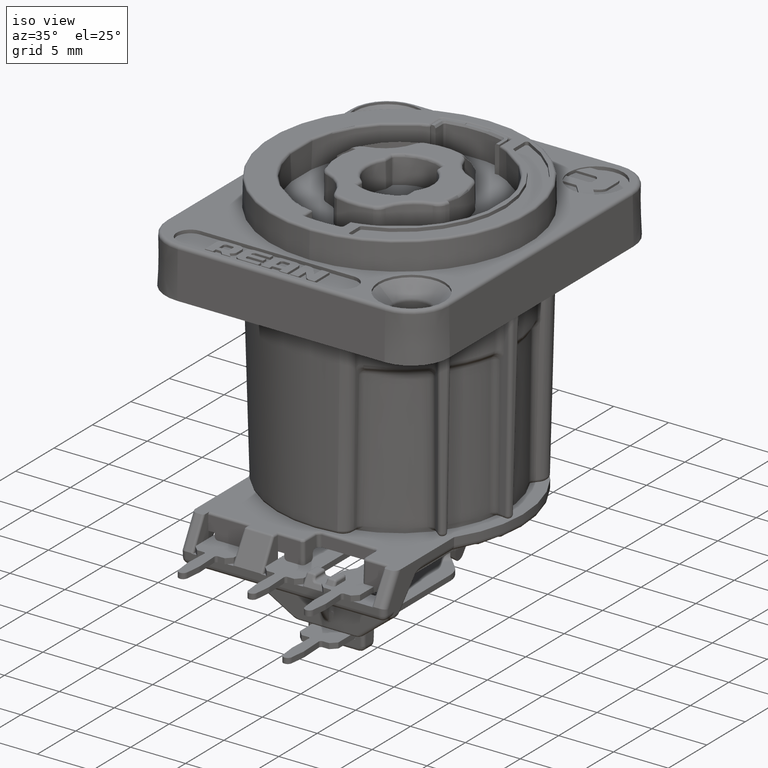
[diagram: clean part render]
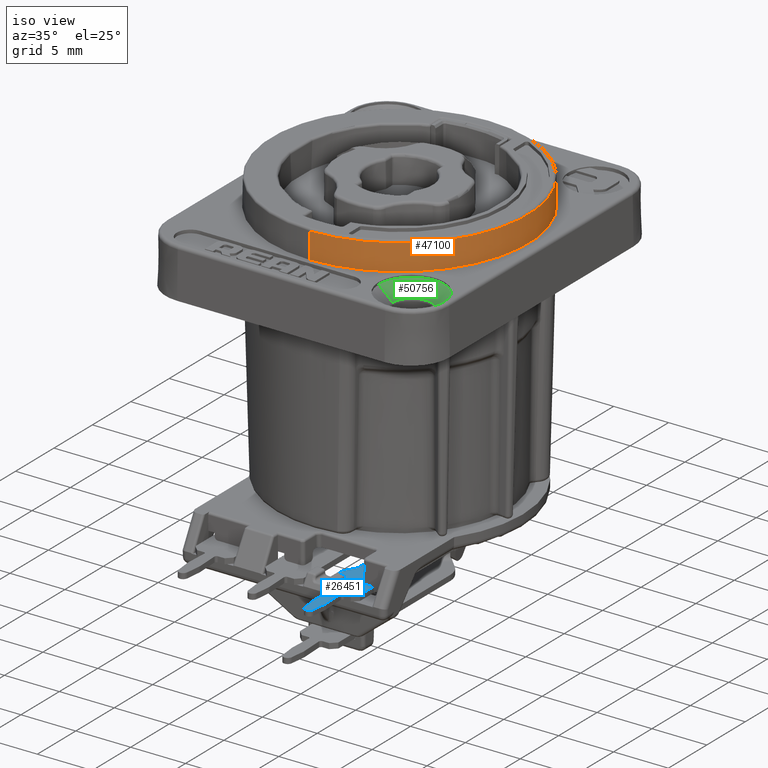
[diagram: same view with three faces highlighted in distinct colors, each labeled with its STEP entity id]
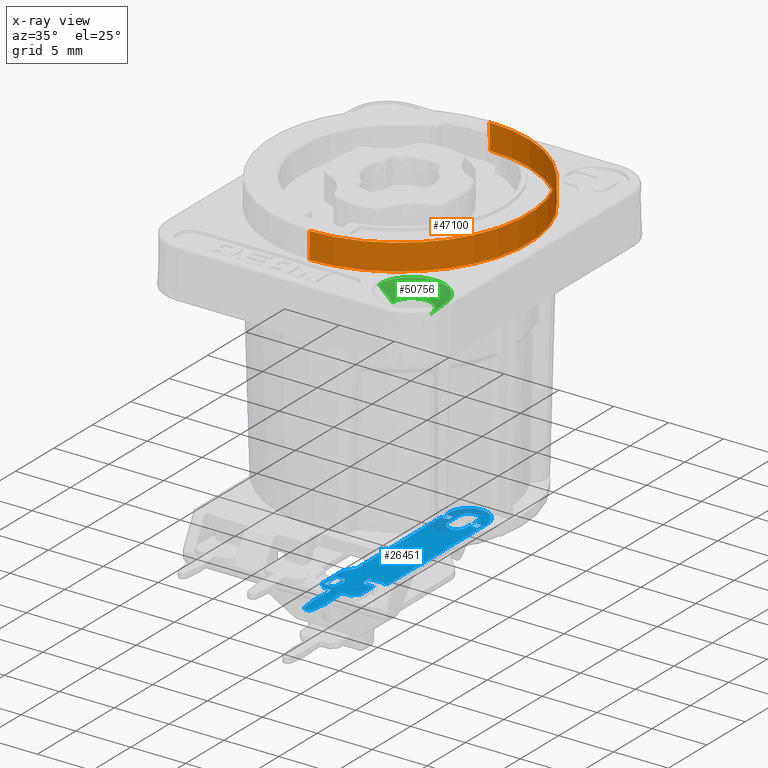
[diagram: x-ray of the same camera — body ghosted, the three highlighted faces saturated]
A machine part, iso view with three faces highlighted in distinct colors.
The next image is the same camera in x-ray (body ghosted, the three faces saturated) — at least one of them is partly hidden behind the body in this view.
Their STEP definitions:

[orange] entity #47100 — the highlighted conical surface has half-angle 1 deg.
#14632=CARTESIAN_POINT('',(0.E0,0.E0,6.853490481287E0));
#14633=DIRECTION('',(0.E0,0.E0,1.E0));
#14634=DIRECTION('',(0.E0,-1.E0,0.E0));
#14635=AXIS2_PLACEMENT_3D('',#14632,#14633,#14634);
#14637=CARTESIAN_POINT('',(0.E0,0.E0,4.5E0));
#14638=DIRECTION('',(0.E0,0.E0,-1.E0));
#14639=DIRECTION('',(0.E0,1.E0,0.E0));
#14640=AXIS2_PLACEMENT_3D('',#14637,#14638,#14639);
#14931=DIRECTION('',(0.E0,1.745240643728E-2,9.998476951564E-1));
#14932=VECTOR('',#14931,2.353848983889E0);
#14933=CARTESIAN_POINT('',(0.E0,-1.175E1,4.5E0));
#14934=LINE('',#14933,#14932);
#14940=DIRECTION('',(0.E0,-1.745240643728E-2,9.998476951564E-1));
#14941=VECTOR('',#14940,2.353848983889E0);
#14942=CARTESIAN_POINT('',(0.E0,1.175E1,4.5E0));
#14943=LINE('',#14942,#14941);
#22442=CARTESIAN_POINT('',(0.E0,1.175E1,4.5E0));
#22443=CARTESIAN_POINT('',(0.E0,-1.175E1,4.5E0));
#22444=VERTEX_POINT('',#22442);
#22445=VERTEX_POINT('',#22443);
#23365=CARTESIAN_POINT('',(0.E0,-1.170891967084E1,6.853490481287E0));
#23366=CARTESIAN_POINT('',(0.E0,1.170891967084E1,6.853490481287E0));
#23367=VERTEX_POINT('',#23365);
#23368=VERTEX_POINT('',#23366);
#47086=CARTESIAN_POINT('',(0.E0,0.E0,5.676745240644E0));
#47087=DIRECTION('',(0.E0,0.E0,-1.E0));
#47088=DIRECTION('',(0.E0,-1.E0,0.E0));
#47089=AXIS2_PLACEMENT_3D('',#47086,#47087,#47088);
#47090=CONICAL_SURFACE('',#47089,1.172945983542E1,1.E0);
#47092=ORIENTED_EDGE('',*,*,#47091,.T.);
#47094=ORIENTED_EDGE('',*,*,#47093,.F.);
#47095=ORIENTED_EDGE('',*,*,#47079,.T.);
#47097=ORIENTED_EDGE('',*,*,#47096,.T.);
#47098=EDGE_LOOP('',(#47092,#47094,#47095,#47097));
#47099=FACE_OUTER_BOUND('',#47098,.F.);
#47100=ADVANCED_FACE('',(#47099),#47090,.T.);
#14636=CIRCLE('',#14635,1.170891967084E1);
#14641=CIRCLE('',#14640,1.175E1);
#47079=EDGE_CURVE('',#22444,#22445,#14641,.T.);
#47091=EDGE_CURVE('',#23367,#23368,#14636,.T.);
#47093=EDGE_CURVE('',#22444,#23368,#14943,.T.);
#47096=EDGE_CURVE('',#22445,#23367,#14934,.T.);

[blue] entity #26451 — the highlighted planar face has unit normal (0, 0, 1).
#1=DIRECTION('',(8.393628278716E-7,9.999999999996E-1,0.E0));
#2=VECTOR('',#1,1.269333800994E0);
#3=CARTESIAN_POINT('',(3.615745937878E0,-1.483812113358E1,-2.002E1));
#4=LINE('',#3,#2);
#23=DIRECTION('',(0.E0,1.E0,0.E0));
#24=VECTOR('',#23,1.746410161514E0);
#25=CARTESIAN_POINT('',(6.9E0,-1.5E1,-2.002E1));
#26=LINE('',#25,#24);
#27=DIRECTION('',(7.071067811865E-1,7.071067811865E-1,0.E0));
#28=VECTOR('',#27,7.071067811865E-1);
#29=CARTESIAN_POINT('',(6.4E0,-1.55E1,-2.002E1));
#30=LINE('',#29,#28);
#31=DIRECTION('',(1.E0,0.E0,0.E0));
#32=VECTOR('',#31,5.906023557859E-1);
#33=CARTESIAN_POINT('',(5.809397644214E0,-1.55E1,-2.002E1));
#34=LINE('',#33,#32);
#35=DIRECTION('',(-4.588543738827E-2,9.989467086065E-1,0.E0));
#36=VECTOR('',#35,1.946988221071E0);
#37=CARTESIAN_POINT('',(5.698946708606E0,-1.765411456261E1,-2.002E1));
#38=LINE('',#37,#36);
#39=CARTESIAN_POINT('',(4.7E0,-1.77E1,-2.002E1));
#40=DIRECTION('',(0.E0,0.E0,1.E0));
#41=DIRECTION('',(9.940351544479E-1,-1.090601289274E-1,0.E0));
#42=AXIS2_PLACEMENT_3D('',#39,#40,#41);
#44=DIRECTION('',(1.090601289274E-1,9.940351544479E-1,0.E0));
#45=VECTOR('',#44,1.342572158210E0);
#46=CARTESIAN_POINT('',(5.547614061779E0,-1.914362405157E1,-2.002E1));
#47=LINE('',#46,#45);
#48=CARTESIAN_POINT('',(5.15E0,-1.91E1,-2.002E1));
#49=DIRECTION('',(0.E0,0.E0,1.E0));
#50=DIRECTION('',(-9.940351544479E-1,-1.090601289274E-1,0.E0));
#51=AXIS2_PLACEMENT_3D('',#48,#49,#50);
#53=DIRECTION('',(1.090601289274E-1,-9.940351544479E-1,0.E0));
#54=VECTOR('',#53,1.342572158210E0);
#55=CARTESIAN_POINT('',(4.605964845552E0,-1.780906012893E1,-2.002E1));
#56=LINE('',#55,#54);
#57=CARTESIAN_POINT('',(5.6E0,-1.77E1,-2.002E1));
#58=DIRECTION('',(0.E0,0.E0,1.E0));
#59=DIRECTION('',(-9.989467086065E-1,4.588543738827E-2,0.E0));
#60=AXIS2_PLACEMENT_3D('',#57,#58,#59);
#62=DIRECTION('',(-4.588543738827E-2,-9.989467086065E-1,0.E0));
#63=VECTOR('',#62,1.946988221071E0);
#64=CARTESIAN_POINT('',(4.690391697507E0,-1.570917708748E1,-2.002E1));
#65=LINE('',#64,#63);
#66=DIRECTION('',(1.E0,0.E0,0.E0));
#67=VECTOR('',#66,5.906023557859E-1);
#68=CARTESIAN_POINT('',(3.9E0,-1.55E1,-2.002E1));
#69=LINE('',#68,#67);
#70=DIRECTION('',(7.071067811865E-1,-7.071067811865E-1,0.E0));
#71=VECTOR('',#70,7.071067811865E-1);
#72=CARTESIAN_POINT('',(3.4E0,-1.5E1,-2.002E1));
#73=LINE('',#72,#71);
#74=DIRECTION('',(0.E0,-1.E0,0.E0));
#75=VECTOR('',#74,2.684232335023E0);
#76=CARTESIAN_POINT('',(3.4E0,-1.231576766498E1,-2.002E1));
#77=LINE('',#76,#75);
#78=CARTESIAN_POINT('',(3.6E0,-1.231576766498E1,-2.002E1));
#79=DIRECTION('',(0.E0,0.E0,1.E0));
#80=DIRECTION('',(-8.660254037844E-1,5.E-1,0.E0));
#81=AXIS2_PLACEMENT_3D('',#78,#79,#80);
#83=DIRECTION('',(-5.E-1,-8.660254037844E-1,0.E0));
#84=VECTOR('',#83,1.092820323028E0);
#85=CARTESIAN_POINT('',(3.973205080757E0,-1.126935750346E1,-2.002E1));
#86=LINE('',#85,#84);
#87=DIRECTION('',(0.E0,-1.E0,0.E0));
#88=VECTOR('',#87,1.087935258889E1);
#89=CARTESIAN_POINT('',(4.E0,-2.900049145777E-1,-2.002E1));
#90=LINE('',#89,#88);
#91=DIRECTION('',(0.E0,-1.E0,0.E0));
#92=VECTOR('',#91,4.599950854223E-1);
#93=CARTESIAN_POINT('',(4.E0,7.5E-1,-2.002E1));
#94=LINE('',#93,#92);
#95=CARTESIAN_POINT('',(5.75E0,7.5E-1,-2.002E1));
#96=DIRECTION('',(0.E0,0.E0,1.E0));
#97=DIRECTION('',(1.E0,0.E0,0.E0));
#98=AXIS2_PLACEMENT_3D('',#95,#96,#97);
#100=DIRECTION('',(0.E0,1.E0,0.E0));
#101=VECTOR('',#100,1.285717967697E1);
#102=CARTESIAN_POINT('',(7.5E0,-1.210717967697E1,-2.002E1));
#103=LINE('',#102,#101);
#104=CARTESIAN_POINT('',(7.3E0,-1.210717967697E1,-2.002E1));
#105=DIRECTION('',(0.E0,0.E0,1.E0));
#106=DIRECTION('',(8.660254037844E-1,-5.E-1,0.E0));
#107=AXIS2_PLACEMENT_3D('',#104,#105,#106);
#109=DIRECTION('',(5.E-1,8.660254037844E-1,0.E0));
#110=VECTOR('',#109,3.664003323583E-1);
#111=CARTESIAN_POINT('',(7.290004914578E0,-1.252449167275E1,-2.002E1));
#112=LINE('',#111,#110);
#113=DIRECTION('',(0.E0,-1.E0,0.E0));
#114=VECTOR('',#113,4.599950854223E-1);
#115=CARTESIAN_POINT('',(6.55E0,7.5E-1,-2.002E1));
#116=LINE('',#115,#114);
#117=CARTESIAN_POINT('',(5.75E0,7.5E-1,-2.002E1));
#118=DIRECTION('',(0.E0,0.E0,-1.E0));
#119=DIRECTION('',(-1.E0,0.E0,0.E0));
#120=AXIS2_PLACEMENT_3D('',#117,#118,#119);
#122=DIRECTION('',(0.E0,1.E0,0.E0));
#123=VECTOR('',#122,1.5E0);
#124=CARTESIAN_POINT('',(4.95E0,-7.5E-1,-2.002E1));
#125=LINE('',#124,#123);
#126=CARTESIAN_POINT('',(5.75E0,-7.5E-1,-2.002E1));
#127=DIRECTION('',(0.E0,0.E0,-1.E0));
#128=DIRECTION('',(1.E0,0.E0,0.E0));
#129=AXIS2_PLACEMENT_3D('',#126,#127,#128);
#131=DIRECTION('',(0.E0,-1.E0,0.E0));
#132=VECTOR('',#131,4.599950854223E-1);
#133=CARTESIAN_POINT('',(6.55E0,-2.900049145777E-1,-2.002E1));
#134=LINE('',#133,#132);
#259=DIRECTION('',(1.E0,0.E0,0.E0));
#260=VECTOR('',#259,7.569410744712E-1);
#261=CARTESIAN_POINT('',(6.143822324146E0,-1.323613198440E1,-2.002E1));
#262=LINE('',#261,#260);
#1499=CARTESIAN_POINT('',(4.540399714289E0,-1.475353247458E1,-2.002E1));
#1500=CARTESIAN_POINT('',(4.540399714289E0,-1.478913329429E1,-2.002E1));
#1501=CARTESIAN_POINT('',(4.527588556641E0,-1.484752377605E1,-2.002E1));
#1502=CARTESIAN_POINT('',(4.488485096933E0,-1.491522277546E1,-2.002E1));
#1503=CARTESIAN_POINT('',(4.430554972464E0,-1.496409511012E1,-2.002E1));
#1504=CARTESIAN_POINT('',(4.377715574880E0,-1.498245735195E1,-2.002E1));
#1505=CARTESIAN_POINT('',(4.342114755174E0,-1.498245735195E1,-2.002E1));
#4380=DIRECTION('',(-1.E0,0.E0,0.E0));
#4381=VECTOR('',#4380,7.400049145777E-1);
#4382=CARTESIAN_POINT('',(7.290004914578E0,-2.900049145777E-1,-2.002E1));
#4383=LINE('',#4382,#4381);
#4430=DIRECTION('',(1.E0,0.E0,0.E0));
#4431=VECTOR('',#4430,7.400049145777E-1);
#4432=CARTESIAN_POINT('',(6.55E0,2.900049145777E-1,-2.002E1));
#4433=LINE('',#4432,#4431);
#4449=DIRECTION('',(0.E0,-1.E0,0.E0));
#4450=VECTOR('',#4449,5.800098291555E-1);
#4451=CARTESIAN_POINT('',(7.290004914578E0,2.900049145777E-1,-2.002E1));
#4452=LINE('',#4451,#4450);
#4596=DIRECTION('',(1.E0,0.E0,0.E0));
#4597=VECTOR('',#4596,6.900049145777E-1);
#4598=CARTESIAN_POINT('',(4.E0,2.900049145777E-1,-2.002E1));
#4599=LINE('',#4598,#4597);
#4615=DIRECTION('',(0.E0,-1.E0,0.E0));
#4616=VECTOR('',#4615,5.800098291555E-1);
#4617=CARTESIAN_POINT('',(4.690004914578E0,2.900049145777E-1,-2.002E1));
#4618=LINE('',#4617,#4616);
#4634=DIRECTION('',(-1.E0,0.E0,0.E0));
#4635=VECTOR('',#4634,6.900049145777E-1);
#4636=CARTESIAN_POINT('',(4.690004914578E0,-2.900049145777E-1,-2.002E1));
#4637=LINE('',#4636,#4635);
#5528=DIRECTION('',(0.E0,1.E0,0.E0));
#5529=VECTOR('',#5528,1.179627023945E0);
#5530=CARTESIAN_POINT('',(4.540399714289E0,-1.475353247458E1,-2.002E1));
#5531=LINE('',#5530,#5529);
#5552=CARTESIAN_POINT('',(4.540399714289E0,-1.357390545064E1,-2.002E1));
#5553=CARTESIAN_POINT('',(4.540399714289E0,-1.354057972984E1,-2.002E1));
#5554=CARTESIAN_POINT('',(4.525948311410E0,-1.348837969112E1,-2.002E1));
#5555=CARTESIAN_POINT('',(4.484809866125E0,-1.342954097401E1,-2.002E1));
#5556=CARTESIAN_POINT('',(4.426000295287E0,-1.338837338245E1,-2.002E1));
#5557=CARTESIAN_POINT('',(4.373816804075E0,-1.337390543207E1,-2.002E1));
#5558=CARTESIAN_POINT('',(4.340491083277E0,-1.337390543207E1,-2.002E1));
#5622=DIRECTION('',(-9.999999999995E-1,-1.003499986808E-6,0.E0));
#5623=VECTOR('',#5622,4.891180619046E-1);
#5624=CARTESIAN_POINT('',(4.340491083277E0,-1.337390543207E1,-2.002E1));
#5625=LINE('',#5624,#5623);
#5770=DIRECTION('',(9.999999999745E-1,7.140768877864E-6,0.E0));
#5771=VECTOR('',#5770,5.464229184748E-1);
#5772=CARTESIAN_POINT('',(3.795691836713E0,-1.498246125383E1,-2.002E1));
#5773=LINE('',#5772,#5771);
#6833=CARTESIAN_POINT('',(5.843868015599E0,-1.293617767585E1,-2.002E1));
#6834=CARTESIAN_POINT('',(5.843868015599E0,-1.298617006061E1,-2.002E1));
#6835=CARTESIAN_POINT('',(5.865563602668E0,-1.306445924306E1,-2.002E1));
#6836=CARTESIAN_POINT('',(5.927299495989E0,-1.315270050401E1,-2.002E1));
#6837=CARTESIAN_POINT('',(6.015540756941E0,-1.321443639733E1,-2.002E1));
#6838=CARTESIAN_POINT('',(6.093829939388E0,-1.323613198440E1,-2.002E1));
#6839=CARTESIAN_POINT('',(6.143822324146E0,-1.323613198440E1,-2.002E1));
#6841=DIRECTION('',(0.E0,1.E0,0.E0));
#6842=VECTOR('',#6841,6.261825904322E-1);
#6843=CARTESIAN_POINT('',(5.843868015599E0,-1.293617767585E1,-2.002E1));
#6844=LINE('',#6843,#6842);
#6865=DIRECTION('',(1.E0,0.E0,0.E0));
#6866=VECTOR('',#6865,1.446136898979E0);
#6867=CARTESIAN_POINT('',(5.843868015599E0,-1.230999508542E1,-2.002E1));
#6868=LINE('',#6867,#6866);
#6884=DIRECTION('',(0.E0,-1.E0,0.E0));
#6885=VECTOR('',#6884,2.144965873275E-1);
#6886=CARTESIAN_POINT('',(7.290004914578E0,-1.230999508542E1,-2.002E1));
#6887=LINE('',#6886,#6885);
#7654=CARTESIAN_POINT('',(3.795691836713E0,-1.498246125383E1,-2.002E1));
#7655=CARTESIAN_POINT('',(3.779127521623E0,-1.498245955591E1,-2.002E1));
#7656=CARTESIAN_POINT('',(3.747744565703E0,-1.497936654174E1,-2.002E1));
#7657=CARTESIAN_POINT('',(3.704486393362E0,-1.496609990457E1,-2.002E1));
#7658=CARTESIAN_POINT('',(3.670266265100E0,-1.494681906104E1,-2.002E1));
#7659=CARTESIAN_POINT('',(3.644765536863E0,-1.492369925158E1,-2.002E1));
#7660=CARTESIAN_POINT('',(3.627363995636E0,-1.489739922909E1,-2.002E1));
#7661=CARTESIAN_POINT('',(3.617771378985E0,-1.486934541820E1,-2.002E1));
#7662=CARTESIAN_POINT('',(3.615745209341E0,-1.484879057952E1,-2.002E1));
#7663=CARTESIAN_POINT('',(3.615745937878E0,-1.483812113358E1,-2.002E1));
#7691=CARTESIAN_POINT('',(3.615747003309E0,-1.356878733259E1,-2.002E1));
#7692=CARTESIAN_POINT('',(3.615746871007E0,-1.355594483759E1,-2.002E1));
#7693=CARTESIAN_POINT('',(3.619469416277E0,-1.353052355155E1,-2.002E1));
#7694=CARTESIAN_POINT('',(3.636012800277E0,-1.349284456921E1,-2.002E1));
#7695=CARTESIAN_POINT('',(3.662747075912E0,-1.345672482359E1,-2.002E1));
#7696=CARTESIAN_POINT('',(3.699547481225E0,-1.342335790470E1,-2.002E1));
#7697=CARTESIAN_POINT('',(3.745703098578E0,-1.339565331518E1,-2.002E1));
#7698=CARTESIAN_POINT('',(3.798844945003E0,-1.337769377827E1,-2.002E1));
#7699=CARTESIAN_POINT('',(3.833666396150E0,-1.337390600137E1,-2.002E1));
#7700=CARTESIAN_POINT('',(3.851373021373E0,-1.337390592290E1,-2.002E1));
#7786=CARTESIAN_POINT('',(4.490602355786E0,-1.57E1,-2.002E1));
#7787=DIRECTION('',(0.E0,0.E0,-1.E0));
#7788=DIRECTION('',(0.E0,1.E0,0.E0));
#7789=AXIS2_PLACEMENT_3D('',#7786,#7787,#7788);
#7828=CARTESIAN_POINT('',(5.809397644214E0,-1.57E1,-2.002E1));
#7829=DIRECTION('',(0.E0,0.E0,-1.E0));
#7830=DIRECTION('',(-9.989467086065E-1,-4.588543738826E-2,0.E0));
#7831=AXIS2_PLACEMENT_3D('',#7828,#7829,#7830);
#7854=CARTESIAN_POINT('',(7.1E0,-1.325358983849E1,-2.002E1));
#7855=DIRECTION('',(0.E0,0.E0,-1.E0));
#7856=DIRECTION('',(-1.E0,0.E0,0.E0));
#7857=AXIS2_PLACEMENT_3D('',#7854,#7855,#7856);
#7888=CARTESIAN_POINT('',(3.8E0,-1.116935750346E1,-2.002E1));
#7889=DIRECTION('',(0.E0,0.E0,-1.E0));
#7890=DIRECTION('',(1.E0,0.E0,0.E0));
#7891=AXIS2_PLACEMENT_3D('',#7888,#7889,#7890);
#25698=CARTESIAN_POINT('',(7.5E0,7.5E-1,-2.002E1));
#25699=CARTESIAN_POINT('',(4.E0,7.5E-1,-2.002E1));
#25700=VERTEX_POINT('',#25698);
#25701=VERTEX_POINT('',#25699);
#25702=CARTESIAN_POINT('',(6.55E0,-7.5E-1,-2.002E1));
#25703=CARTESIAN_POINT('',(4.95E0,-7.5E-1,-2.002E1));
#25704=VERTEX_POINT('',#25702);
#25705=VERTEX_POINT('',#25703);
#25706=CARTESIAN_POINT('',(4.95E0,7.5E-1,-2.002E1));
#25707=CARTESIAN_POINT('',(6.55E0,7.5E-1,-2.002E1));
#25708=VERTEX_POINT('',#25706);
#25709=VERTEX_POINT('',#25707);
#25714=CARTESIAN_POINT('',(4.752385938221E0,-1.914362405157E1,-2.002E1));
#25715=CARTESIAN_POINT('',(5.547614061779E0,-1.914362405157E1,-2.002E1));
#25716=VERTEX_POINT('',#25714);
#25717=VERTEX_POINT('',#25715);
#25726=CARTESIAN_POINT('',(4.601053291394E0,-1.765411456261E1,-2.002E1));
#25727=CARTESIAN_POINT('',(4.605964845552E0,-1.780906012893E1,-2.002E1));
#25728=VERTEX_POINT('',#25726);
#25729=VERTEX_POINT('',#25727);
#25730=CARTESIAN_POINT('',(5.694035154448E0,-1.780906012893E1,-2.002E1));
#25731=VERTEX_POINT('',#25730);
#25732=CARTESIAN_POINT('',(5.698946708606E0,-1.765411456261E1,-2.002E1));
#25733=VERTEX_POINT('',#25732);
#25734=CARTESIAN_POINT('',(3.4E0,-1.5E1,-2.002E1));
#25735=CARTESIAN_POINT('',(3.9E0,-1.55E1,-2.002E1));
#25736=VERTEX_POINT('',#25734);
#25737=VERTEX_POINT('',#25735);
#25744=CARTESIAN_POINT('',(6.4E0,-1.55E1,-2.002E1));
#25745=VERTEX_POINT('',#25744);
#25746=CARTESIAN_POINT('',(6.9E0,-1.5E1,-2.002E1));
#25747=VERTEX_POINT('',#25746);
#25791=CARTESIAN_POINT('',(3.973205080757E0,-1.126935750346E1,-2.002E1));
#25793=VERTEX_POINT('',#25791);
#25795=CARTESIAN_POINT('',(4.E0,-1.116935750346E1,-2.002E1));
#25797=VERTEX_POINT('',#25795);
#25799=CARTESIAN_POINT('',(6.9E0,-1.325358983849E1,-2.002E1));
#25801=VERTEX_POINT('',#25799);
#25808=CARTESIAN_POINT('',(3.426794919243E0,-1.221576766498E1,-2.002E1));
#25809=VERTEX_POINT('',#25808);
#25810=CARTESIAN_POINT('',(3.4E0,-1.231576766498E1,-2.002E1));
#25811=VERTEX_POINT('',#25810);
#25816=CARTESIAN_POINT('',(7.473205080757E0,-1.220717967697E1,-2.002E1));
#25817=VERTEX_POINT('',#25816);
#25818=CARTESIAN_POINT('',(7.5E0,-1.210717967697E1,-2.002E1));
#25819=VERTEX_POINT('',#25818);
#25821=CARTESIAN_POINT('',(5.809397644214E0,-1.55E1,-2.002E1));
#25823=VERTEX_POINT('',#25821);
#25825=CARTESIAN_POINT('',(5.609608302493E0,-1.570917708748E1,-2.002E1));
#25827=VERTEX_POINT('',#25825);
#25829=CARTESIAN_POINT('',(4.690391697507E0,-1.570917708748E1,-2.002E1));
#25831=VERTEX_POINT('',#25829);
#25833=CARTESIAN_POINT('',(4.490602355786E0,-1.55E1,-2.002E1));
#25835=VERTEX_POINT('',#25833);
#25840=CARTESIAN_POINT('',(4.E0,2.900049145777E-1,-2.002E1));
#25841=CARTESIAN_POINT('',(4.E0,-2.900049145777E-1,-2.002E1));
#25842=VERTEX_POINT('',#25840);
#25843=VERTEX_POINT('',#25841);
#25844=CARTESIAN_POINT('',(6.55E0,2.900049145777E-1,-2.002E1));
#25845=CARTESIAN_POINT('',(6.55E0,-2.900049145777E-1,-2.002E1));
#25846=VERTEX_POINT('',#25844);
#25847=VERTEX_POINT('',#25845);
#25848=CARTESIAN_POINT('',(7.290004914578E0,-1.252449167275E1,-2.002E1));
#25850=VERTEX_POINT('',#25848);
#25852=CARTESIAN_POINT('',(6.900763398617E0,-1.323613198440E1,-2.002E1));
#25853=VERTEX_POINT('',#25852);
#25854=CARTESIAN_POINT('',(6.143822324146E0,-1.323613198440E1,-2.002E1));
#25855=VERTEX_POINT('',#25854);
#25856=CARTESIAN_POINT('',(5.843868015599E0,-1.293617767585E1,-2.002E1));
#25857=CARTESIAN_POINT('',(5.843868015599E0,-1.230999508542E1,-2.002E1));
#25858=VERTEX_POINT('',#25856);
#25859=VERTEX_POINT('',#25857);
#25864=CARTESIAN_POINT('',(3.795691836713E0,-1.498246125383E1,-2.002E1));
#25865=CARTESIAN_POINT('',(4.342114755174E0,-1.498245735195E1,-2.002E1));
#25866=VERTEX_POINT('',#25864);
#25867=VERTEX_POINT('',#25865);
#25874=CARTESIAN_POINT('',(4.540399714289E0,-1.475353247458E1,-2.002E1));
#25875=CARTESIAN_POINT('',(4.540399714289E0,-1.357390545064E1,-2.002E1));
#25876=VERTEX_POINT('',#25874);
#25877=VERTEX_POINT('',#25875);
#25882=CARTESIAN_POINT('',(4.340491083277E0,-1.337390543207E1,-2.002E1));
#25883=CARTESIAN_POINT('',(3.851373021373E0,-1.337390592290E1,-2.002E1));
#25884=VERTEX_POINT('',#25882);
#25885=VERTEX_POINT('',#25883);
#25888=CARTESIAN_POINT('',(7.290004914578E0,-1.230999508542E1,-2.002E1));
#25889=VERTEX_POINT('',#25888);
#25890=CARTESIAN_POINT('',(4.690004914578E0,2.900049145777E-1,-2.002E1));
#25891=VERTEX_POINT('',#25890);
#25892=CARTESIAN_POINT('',(4.690004914578E0,-2.900049145777E-1,-2.002E1));
#25893=VERTEX_POINT('',#25892);
#25894=CARTESIAN_POINT('',(7.290004914578E0,2.900049145777E-1,-2.002E1));
#25895=VERTEX_POINT('',#25894);
#25896=CARTESIAN_POINT('',(7.290004914578E0,-2.900049145777E-1,-2.002E1));
#25897=VERTEX_POINT('',#25896);
#25898=CARTESIAN_POINT('',(3.615745937878E0,-1.483812113358E1,-2.002E1));
#25899=CARTESIAN_POINT('',(3.615747003309E0,-1.356878733259E1,-2.002E1));
#25900=VERTEX_POINT('',#25898);
#25901=VERTEX_POINT('',#25899);
#26343=CARTESIAN_POINT('',(5.75E0,7.5E-1,-2.002E1));
#26344=DIRECTION('',(0.E0,0.E0,1.E0));
#26345=DIRECTION('',(1.E0,0.E0,0.E0));
#26346=AXIS2_PLACEMENT_3D('',#26343,#26344,#26345);
#26347=PLANE('',#26346);
#26349=ORIENTED_EDGE('',*,*,#26348,.T.);
#26351=ORIENTED_EDGE('',*,*,#26350,.F.);
#26353=ORIENTED_EDGE('',*,*,#26352,.F.);
#26355=ORIENTED_EDGE('',*,*,#26354,.F.);
#26357=ORIENTED_EDGE('',*,*,#26356,.F.);
#26359=ORIENTED_EDGE('',*,*,#26358,.F.);
#26361=ORIENTED_EDGE('',*,*,#26360,.F.);
#26363=ORIENTED_EDGE('',*,*,#26362,.F.);
#26365=ORIENTED_EDGE('',*,*,#26364,.F.);
#26367=ORIENTED_EDGE('',*,*,#26366,.F.);
#26369=ORIENTED_EDGE('',*,*,#26368,.F.);
#26371=ORIENTED_EDGE('',*,*,#26370,.F.);
#26373=ORIENTED_EDGE('',*,*,#26372,.F.);
#26375=ORIENTED_EDGE('',*,*,#26374,.F.);
#26377=ORIENTED_EDGE('',*,*,#26376,.F.);
#26379=ORIENTED_EDGE('',*,*,#26378,.F.);
#26381=ORIENTED_EDGE('',*,*,#26380,.F.);
#26383=ORIENTED_EDGE('',*,*,#26382,.F.);
#26385=ORIENTED_EDGE('',*,*,#26384,.F.);
#26387=ORIENTED_EDGE('',*,*,#26386,.F.);
#26389=ORIENTED_EDGE('',*,*,#26388,.F.);
#26391=ORIENTED_EDGE('',*,*,#26390,.F.);
#26393=ORIENTED_EDGE('',*,*,#26392,.F.);
#26395=ORIENTED_EDGE('',*,*,#26394,.F.);
#26397=ORIENTED_EDGE('',*,*,#26396,.F.);
#26399=ORIENTED_EDGE('',*,*,#26398,.F.);
#26401=ORIENTED_EDGE('',*,*,#26400,.F.);
#26403=ORIENTED_EDGE('',*,*,#26402,.F.);
#26405=ORIENTED_EDGE('',*,*,#26404,.F.);
#26407=ORIENTED_EDGE('',*,*,#26406,.F.);
#26409=ORIENTED_EDGE('',*,*,#26408,.F.);
#26411=ORIENTED_EDGE('',*,*,#26410,.F.);
#26413=ORIENTED_EDGE('',*,*,#26412,.T.);
#26414=EDGE_LOOP('',(#26349,#26351,#26353,#26355,#26357,#26359,#26361,#26363,
#26365,#26367,#26369,#26371,#26373,#26375,#26377,#26379,#26381,#26383,#26385,
#26387,#26389,#26391,#26393,#26395,#26397,#26399,#26401,#26403,#26405,#26407,
#26409,#26411,#26413));
#26415=FACE_OUTER_BOUND('',#26414,.F.);
#26417=ORIENTED_EDGE('',*,*,#26416,.T.);
#26419=ORIENTED_EDGE('',*,*,#26418,.F.);
#26421=ORIENTED_EDGE('',*,*,#26420,.T.);
#26423=ORIENTED_EDGE('',*,*,#26422,.T.);
#26425=ORIENTED_EDGE('',*,*,#26424,.T.);
#26427=ORIENTED_EDGE('',*,*,#26426,.F.);
#26428=ORIENTED_EDGE('',*,*,#26332,.F.);
#26430=ORIENTED_EDGE('',*,*,#26429,.F.);
#26431=EDGE_LOOP('',(#26417,#26419,#26421,#26423,#26425,#26427,#26428,#26430));
#26432=FACE_BOUND('',#26431,.F.);
#26434=ORIENTED_EDGE('',*,*,#26433,.F.);
#26436=ORIENTED_EDGE('',*,*,#26435,.F.);
#26438=ORIENTED_EDGE('',*,*,#26437,.F.);
#26440=ORIENTED_EDGE('',*,*,#26439,.F.);
#26442=ORIENTED_EDGE('',*,*,#26441,.F.);
#26444=ORIENTED_EDGE('',*,*,#26443,.F.);
#26446=ORIENTED_EDGE('',*,*,#26445,.F.);
#26448=ORIENTED_EDGE('',*,*,#26447,.F.);
#26449=EDGE_LOOP('',(#26434,#26436,#26438,#26440,#26442,#26444,#26446,#26448));
#26450=FACE_BOUND('',#26449,.F.);
#26451=ADVANCED_FACE('',(#26415,#26432,#26450),#26347,.T.);
#43=CIRCLE('',#42,1.E0);
#52=CIRCLE('',#51,4.E-1);
#61=CIRCLE('',#60,1.E0);
#82=CIRCLE('',#81,2.E-1);
#99=CIRCLE('',#98,1.75E0);
#108=CIRCLE('',#107,2.E-1);
#121=CIRCLE('',#120,8.E-1);
#130=CIRCLE('',#129,8.E-1);
#1506=B_SPLINE_CURVE_WITH_KNOTS('',3,(#1499,#1500,#1501,#1502,#1503,#1504,
#1505),.UNSPECIFIED.,.F.,.F.,(4,1,1,1,4),(0.E0,2.5E-1,5.E-1,7.5E-1,1.E0),
.UNSPECIFIED.);
#5559=B_SPLINE_CURVE_WITH_KNOTS('',3,(#5552,#5553,#5554,#5555,#5556,#5557,
#5558),.UNSPECIFIED.,.F.,.F.,(4,1,1,1,4),(0.E0,2.5E-1,5.E-1,7.5E-1,1.E0),
.UNSPECIFIED.);
#6840=B_SPLINE_CURVE_WITH_KNOTS('',3,(#6833,#6834,#6835,#6836,#6837,#6838,
#6839),.UNSPECIFIED.,.F.,.F.,(4,1,1,1,4),(0.E0,2.5E-1,5.E-1,7.5E-1,1.E0),
.UNSPECIFIED.);
#7664=B_SPLINE_CURVE_WITH_KNOTS('',3,(#7654,#7655,#7656,#7657,#7658,#7659,#7660,
#7661,#7662,#7663),.UNSPECIFIED.,.F.,.F.,(4,1,1,1,1,1,1,4),(0.E0,
1.428571428571E-1,2.857142857143E-1,4.285714285714E-1,5.714285714286E-1,
7.142857142857E-1,8.571428571429E-1,1.E0),.UNSPECIFIED.);
#7701=B_SPLINE_CURVE_WITH_KNOTS('',3,(#7691,#7692,#7693,#7694,#7695,#7696,#7697,
#7698,#7699,#7700),.UNSPECIFIED.,.F.,.F.,(4,1,1,1,1,1,1,4),(0.E0,
1.428571428571E-1,2.857142857143E-1,4.285714285714E-1,5.714285714286E-1,
7.142857142857E-1,8.571428571429E-1,1.E0),.UNSPECIFIED.);
#7790=CIRCLE('',#7789,2.E-1);
#7832=CIRCLE('',#7831,2.E-1);
#7858=CIRCLE('',#7857,2.E-1);
#7892=CIRCLE('',#7891,2.E-1);
#26332=EDGE_CURVE('',#25900,#25901,#4,.T.);
#26348=EDGE_CURVE('',#25855,#25853,#262,.T.);
#26350=EDGE_CURVE('',#25801,#25853,#7858,.T.);
#26352=EDGE_CURVE('',#25747,#25801,#26,.T.);
#26354=EDGE_CURVE('',#25745,#25747,#30,.T.);
#26356=EDGE_CURVE('',#25823,#25745,#34,.T.);
#26358=EDGE_CURVE('',#25827,#25823,#7832,.T.);
#26360=EDGE_CURVE('',#25733,#25827,#38,.T.);
#26362=EDGE_CURVE('',#25731,#25733,#43,.T.);
#26364=EDGE_CURVE('',#25717,#25731,#47,.T.);
#26366=EDGE_CURVE('',#25716,#25717,#52,.T.);
#26368=EDGE_CURVE('',#25729,#25716,#56,.T.);
#26370=EDGE_CURVE('',#25728,#25729,#61,.T.);
#26372=EDGE_CURVE('',#25831,#25728,#65,.T.);
#26374=EDGE_CURVE('',#25835,#25831,#7790,.T.);
#26376=EDGE_CURVE('',#25737,#25835,#69,.T.);
#26378=EDGE_CURVE('',#25736,#25737,#73,.T.);
#26380=EDGE_CURVE('',#25811,#25736,#77,.T.);
#26382=EDGE_CURVE('',#25809,#25811,#82,.T.);
#26384=EDGE_CURVE('',#25793,#25809,#86,.T.);
#26386=EDGE_CURVE('',#25797,#25793,#7892,.T.);
#26388=EDGE_CURVE('',#25843,#25797,#90,.T.);
#26390=EDGE_CURVE('',#25893,#25843,#4637,.T.);
#26392=EDGE_CURVE('',#25891,#25893,#4618,.T.);
#26394=EDGE_CURVE('',#25842,#25891,#4599,.T.);
#26396=EDGE_CURVE('',#25701,#25842,#94,.T.);
#26398=EDGE_CURVE('',#25700,#25701,#99,.T.);
#26400=EDGE_CURVE('',#25819,#25700,#103,.T.);
#26402=EDGE_CURVE('',#25817,#25819,#108,.T.);
#26404=EDGE_CURVE('',#25850,#25817,#112,.T.);
#26406=EDGE_CURVE('',#25889,#25850,#6887,.T.);
#26408=EDGE_CURVE('',#25859,#25889,#6868,.T.);
#26410=EDGE_CURVE('',#25858,#25859,#6844,.T.);
#26412=EDGE_CURVE('',#25858,#25855,#6840,.T.);
#26416=EDGE_CURVE('',#25866,#25867,#5773,.T.);
#26418=EDGE_CURVE('',#25876,#25867,#1506,.T.);
#26420=EDGE_CURVE('',#25876,#25877,#5531,.T.);
#26422=EDGE_CURVE('',#25877,#25884,#5559,.T.);
#26424=EDGE_CURVE('',#25884,#25885,#5625,.T.);
#26426=EDGE_CURVE('',#25901,#25885,#7701,.T.);
#26429=EDGE_CURVE('',#25866,#25900,#7664,.T.);
#26433=EDGE_CURVE('',#25846,#25895,#4433,.T.);
#26435=EDGE_CURVE('',#25709,#25846,#116,.T.);
#26437=EDGE_CURVE('',#25708,#25709,#121,.T.);
#26439=EDGE_CURVE('',#25705,#25708,#125,.T.);
#26441=EDGE_CURVE('',#25704,#25705,#130,.T.);
#26443=EDGE_CURVE('',#25847,#25704,#134,.T.);
#26445=EDGE_CURVE('',#25897,#25847,#4383,.T.);
#26447=EDGE_CURVE('',#25895,#25897,#4452,.T.);

[green] entity #50756 — the highlighted conical surface has half-angle 47.5 deg.
#17227=CARTESIAN_POINT('',(9.5E0,-1.2E1,4.3E0));
#17228=DIRECTION('',(0.E0,0.E0,1.E0));
#17229=DIRECTION('',(1.E0,0.E0,0.E0));
#17230=AXIS2_PLACEMENT_3D('',#17227,#17228,#17229);
#17250=DIRECTION('',(7.372773368101E-1,-1.465126043410E-14,6.755902076157E-1));
#17251=VECTOR('',#17250,1.697396334156E0);
#17252=CARTESIAN_POINT('',(1.124854815124E1,-1.2E1,3.153255658202E0));
#17253=LINE('',#17252,#17251);
#17254=DIRECTION('',(-7.372773368101E-1,1.883733484384E-14,6.755902076157E-1));
#17255=VECTOR('',#17254,1.697396334156E0);
#17256=CARTESIAN_POINT('',(7.751451848758E0,-1.2E1,3.153255658202E0));
#17257=LINE('',#17256,#17255);
#17286=CARTESIAN_POINT('',(9.5E0,-1.2E1,3.153255658202E0));
#17287=DIRECTION('',(0.E0,0.E0,1.E0));
#17288=DIRECTION('',(1.E0,0.E0,0.E0));
#17289=AXIS2_PLACEMENT_3D('',#17286,#17287,#17288);
#22434=CARTESIAN_POINT('',(1.25E1,-1.2E1,4.3E0));
#22435=CARTESIAN_POINT('',(6.5E0,-1.2E1,4.3E0));
#22436=VERTEX_POINT('',#22434);
#22437=VERTEX_POINT('',#22435);
#23509=CARTESIAN_POINT('',(7.751451848758E0,-1.2E1,3.153255658202E0));
#23510=CARTESIAN_POINT('',(1.124854815124E1,-1.2E1,3.153255658202E0));
#23511=VERTEX_POINT('',#23509);
#23512=VERTEX_POINT('',#23510);
#50745=CARTESIAN_POINT('',(9.5E0,-1.2E1,3.726627829101E0));
#50746=DIRECTION('',(0.E0,0.E0,1.E0));
#50747=DIRECTION('',(1.E0,0.E0,0.E0));
#50748=AXIS2_PLACEMENT_3D('',#50745,#50746,#50747);
#50749=CONICAL_SURFACE('',#50748,2.374274075621E0,4.75E1);
#50750=ORIENTED_EDGE('',*,*,#50739,.T.);
#50751=ORIENTED_EDGE('',*,*,#50685,.T.);
#50752=ORIENTED_EDGE('',*,*,#50655,.F.);
#50753=ORIENTED_EDGE('',*,*,#50682,.F.);
#50754=EDGE_LOOP('',(#50750,#50751,#50752,#50753));
#50755=FACE_OUTER_BOUND('',#50754,.F.);
#50756=ADVANCED_FACE('',(#50755),#50749,.F.);
#17231=CIRCLE('',#17230,3.E0);
#17290=CIRCLE('',#17289,1.748548151242E0);
#50655=EDGE_CURVE('',#22436,#22437,#17231,.T.);
#50682=EDGE_CURVE('',#23512,#22436,#17253,.T.);
#50685=EDGE_CURVE('',#23511,#22437,#17257,.T.);
#50739=EDGE_CURVE('',#23512,#23511,#17290,.T.);